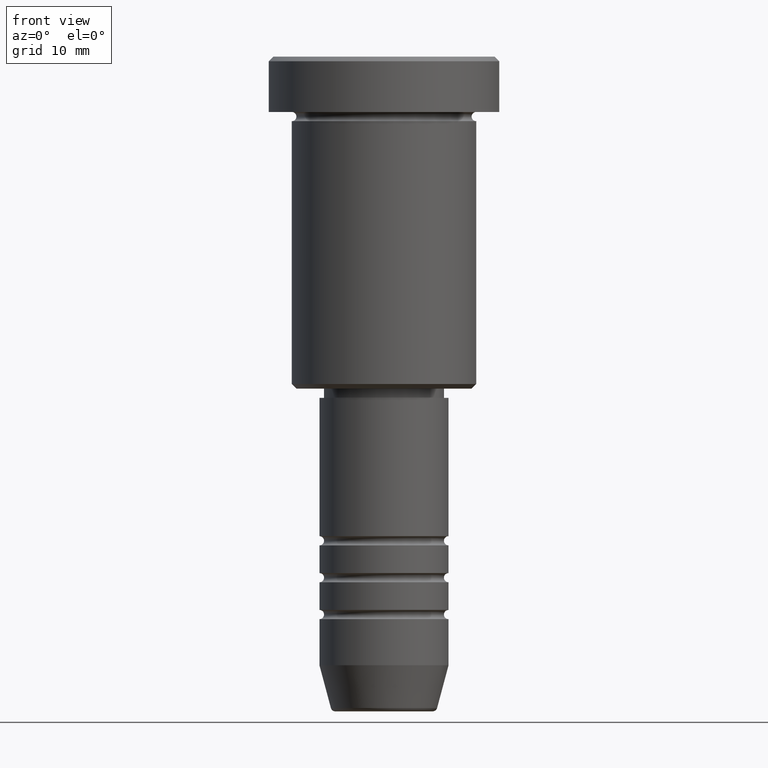
[diagram: clean part render]
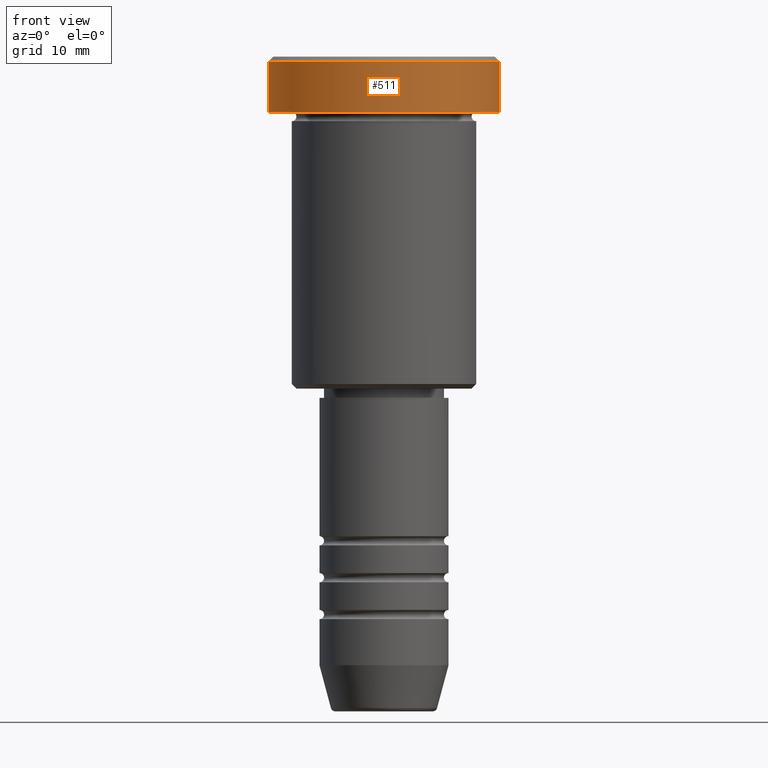
[diagram: same view with one face highlighted and labeled with its STEP entity id]
A machine part, front view. The second image highlights one B-rep face of the part: STEP entity #511.
In plain terms, the highlighted cylindrical surface (partial cylindrical patch) has radius 12.5 mm, axis along (-0, -0, 1).
Its self-contained STEP definition (entity closure, byte-faithful):
#18 = DIRECTION ( 'NONE',  ( -0.000000000000000000, -0.000000000000000000, 1.000000000000000000 ) ) ;
#130 = CARTESIAN_POINT ( 'NONE',  ( 12.50000000000000000, 0.000000000000000000, -0.5000000000000126565 ) ) ;
#135 = CARTESIAN_POINT ( 'NONE',  ( 12.50000000000000000, 0.000000000000000000, 0.000000000000000000 ) ) ;
#165 = VECTOR ( 'NONE', #332, 1000.000000000000000 ) ;
#180 = AXIS2_PLACEMENT_3D ( 'NONE', #1089, #335, #1182 ) ;
#191 = CYLINDRICAL_SURFACE ( 'NONE', #337, 12.50000000000000000 ) ;
#228 = ORIENTED_EDGE ( 'NONE', *, *, #796, .T. ) ;
#275 = DIRECTION ( 'NONE',  ( 1.000000000000000000, 0.000000000000000000, 0.000000000000000000 ) ) ;
#332 = DIRECTION ( 'NONE',  ( -0.000000000000000000, -0.000000000000000000, 1.000000000000000000 ) ) ;
#335 = DIRECTION ( 'NONE',  ( -0.000000000000000000, -0.000000000000000000, 1.000000000000000000 ) ) ;
#337 = AXIS2_PLACEMENT_3D ( 'NONE', #908, #18, #916 ) ;
#343 = EDGE_CURVE ( 'NONE', #631, #417, #682, .T. ) ;
#358 = VECTOR ( 'NONE', #823, 1000.000000000000000 ) ;
#393 = CARTESIAN_POINT ( 'NONE',  ( 0.000000000000000000, 0.000000000000000000, -0.5000000000000126565 ) ) ;
#410 = LINE ( 'NONE', #135, #165 ) ;
#417 = VERTEX_POINT ( 'NONE', #794 ) ;
#419 = AXIS2_PLACEMENT_3D ( 'NONE', #393, #660, #275 ) ;
#466 = FACE_OUTER_BOUND ( 'NONE', #470, .T. ) ;
#470 = EDGE_LOOP ( 'NONE', ( #915, #677, #228, #837 ) ) ;
#511 = ADVANCED_FACE ( 'NONE', ( #466 ), #191, .T. ) ;
#542 = CARTESIAN_POINT ( 'NONE',  ( -12.50000000000000000, 1.530808498934191521E-15, -0.5000000000000126565 ) ) ;
#563 = EDGE_CURVE ( 'NONE', #864, #960, #700, .T. ) ;
#566 = CARTESIAN_POINT ( 'NONE',  ( -12.50000000000000000, 1.530808498934191521E-15, 0.000000000000000000 ) ) ;
#630 = EDGE_CURVE ( 'NONE', #631, #960, #845, .T. ) ;
#631 = VERTEX_POINT ( 'NONE', #658 ) ;
#658 = CARTESIAN_POINT ( 'NONE',  ( -12.50000000000000000, 1.530808498934191521E-15, -5.999999999999996447 ) ) ;
#660 = DIRECTION ( 'NONE',  ( 0.000000000000000000, 0.000000000000000000, -1.000000000000000000 ) ) ;
#677 = ORIENTED_EDGE ( 'NONE', *, *, #343, .T. ) ;
#682 = CIRCLE ( 'NONE', #180, 12.50000000000000000 ) ;
#700 = CIRCLE ( 'NONE', #419, 12.50000000000000000 ) ;
#794 = CARTESIAN_POINT ( 'NONE',  ( 12.50000000000000000, 0.000000000000000000, -5.999999999999996447 ) ) ;
#796 = EDGE_CURVE ( 'NONE', #417, #864, #410, .T. ) ;
#823 = DIRECTION ( 'NONE',  ( -0.000000000000000000, -0.000000000000000000, 1.000000000000000000 ) ) ;
#837 = ORIENTED_EDGE ( 'NONE', *, *, #563, .T. ) ;
#845 = LINE ( 'NONE', #566, #358 ) ;
#864 = VERTEX_POINT ( 'NONE', #130 ) ;
#908 = CARTESIAN_POINT ( 'NONE',  ( 0.000000000000000000, 0.000000000000000000, 0.000000000000000000 ) ) ;
#915 = ORIENTED_EDGE ( 'NONE', *, *, #630, .F. ) ;
#916 = DIRECTION ( 'NONE',  ( 1.000000000000000000, 0.000000000000000000, 0.000000000000000000 ) ) ;
#960 = VERTEX_POINT ( 'NONE', #542 ) ;
#1089 = CARTESIAN_POINT ( 'NONE',  ( 0.000000000000000000, 0.000000000000000000, -5.999999999999996447 ) ) ;
#1182 = DIRECTION ( 'NONE',  ( 1.000000000000000000, 0.000000000000000000, 0.000000000000000000 ) ) ;